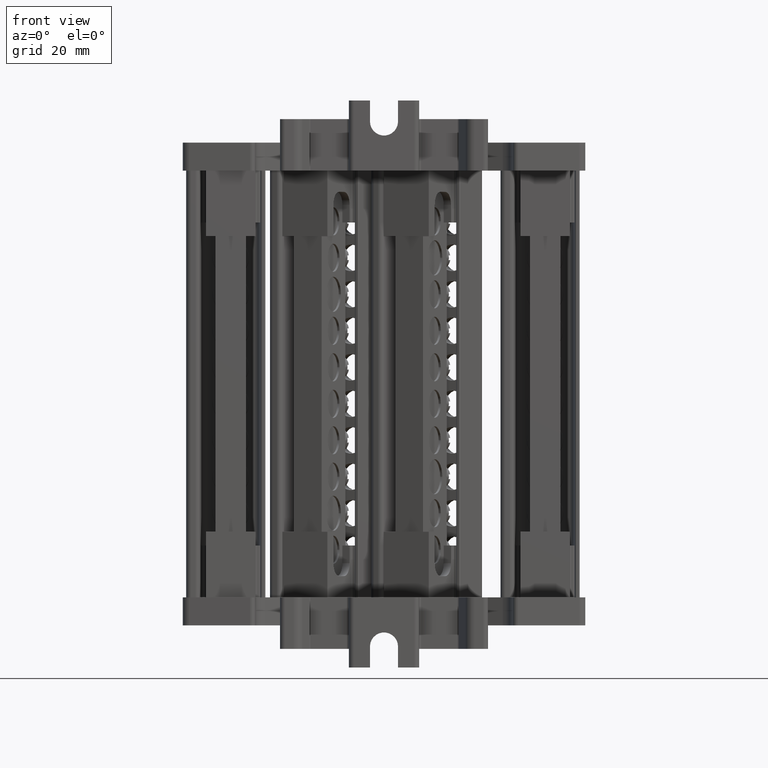
[diagram: clean part render]
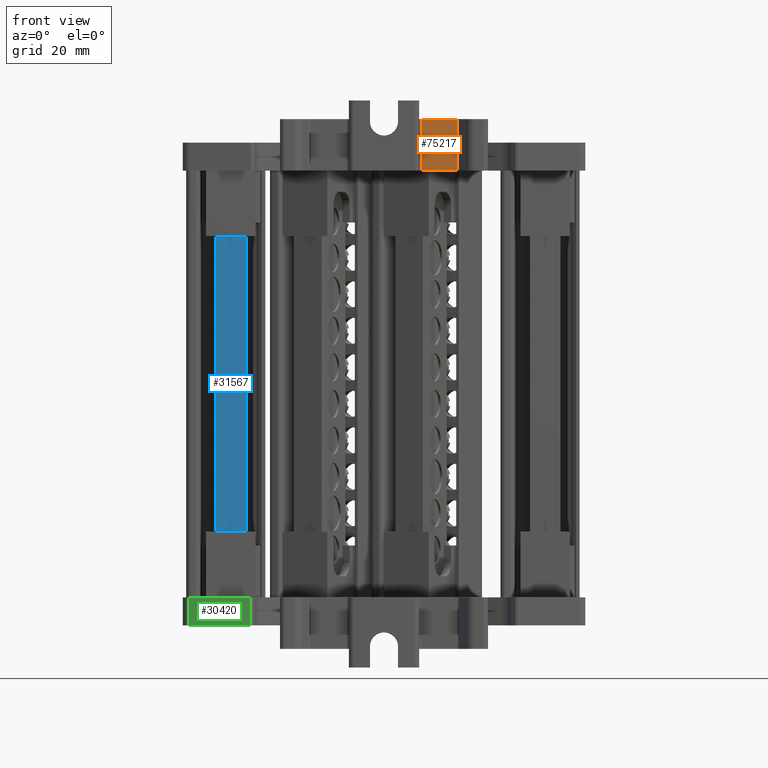
[diagram: same view with three faces highlighted in distinct colors, each labeled with its STEP entity id]
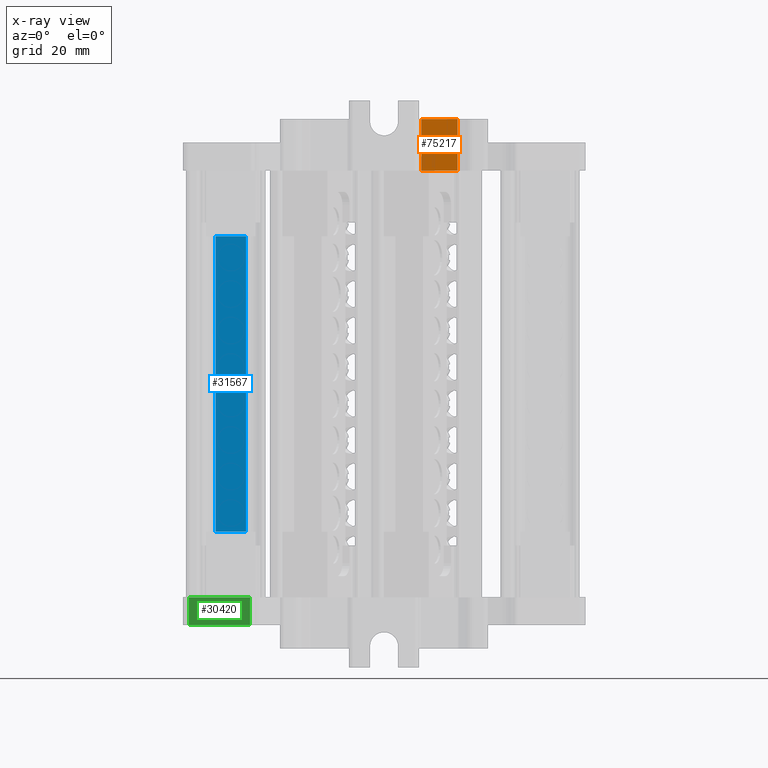
[diagram: x-ray of the same camera — body ghosted, the three highlighted faces saturated]
A machine part, front view with three faces highlighted in distinct colors.
The next image is the same camera in x-ray (body ghosted, the three faces saturated) — at least one of them is partly hidden behind the body in this view.
Their STEP definitions:

[orange] entity #75217 — the highlighted planar face has unit normal (-0, 1, 0).
#160 = ORIENTED_EDGE ( 'NONE', *, *, #6796, .F. ) ;
#163 = ORIENTED_EDGE ( 'NONE', *, *, #6807, .F. ) ;
#202 = ORIENTED_EDGE ( 'NONE', *, *, #15896, .F. ) ;
#297 = ORIENTED_EDGE ( 'NONE', *, *, #6812, .F. ) ;
#6796 = EDGE_CURVE ( 'NONE', #24451, #24515, #81922, .T. ) ;
#6807 = EDGE_CURVE ( 'NONE', #24375, #24474, #81988, .T. ) ;
#6812 = EDGE_CURVE ( 'NONE', #24515, #24375, #82012, .T. ) ;
#15896 = EDGE_CURVE ( 'NONE', #24474, #24451, #32202, .T. ) ;
#22197 = VECTOR ( 'NONE', #32301, 1000.000000000000000 ) ;
#24375 = VERTEX_POINT ( 'NONE', #110832 ) ;
#24451 = VERTEX_POINT ( 'NONE', #110870 ) ;
#24474 = VERTEX_POINT ( 'NONE', #110784 ) ;
#24515 = VERTEX_POINT ( 'NONE', #111004 ) ;
#32202 = LINE ( 'NONE', #32246, #22197 ) ;
#32246 = CARTESIAN_POINT ( 'NONE',  ( 393.5326994787840800, -111.7667543294538200, 96.29460800001189100 ) ) ;
#32301 = DIRECTION ( 'NONE',  ( -1.000000000000000000, 0.0000000000000000000, -0.0000000000000000000 ) ) ;
#48082 = VECTOR ( 'NONE', #81967, 1000.000000000000000 ) ;
#48100 = VECTOR ( 'NONE', #81997, 1000.000000000000000 ) ;
#48294 = VECTOR ( 'NONE', #82035, 1000.000000000000100 ) ;
#60343 = EDGE_LOOP ( 'NONE', ( #163, #297, #160, #202 ) ) ;
#63501 = AXIS2_PLACEMENT_3D ( 'NONE', #79361, #79381, #79363 ) ;
#75217 = ADVANCED_FACE ( 'NONE', ( #79377 ), #79358, .F. ) ;
#79358 = PLANE ( 'NONE',  #63501 ) ;
#79361 = CARTESIAN_POINT ( 'NONE',  ( 393.5326964436435400, -111.7667551424064100, 96.29460800001189100 ) ) ;
#79363 = DIRECTION ( 'NONE',  ( -0.9999999999999985600, -5.281446223115881900E-008, 0.0000000000000000000 ) ) ;
#79377 = FACE_OUTER_BOUND ( 'NONE', #60343, .T. ) ;
#79381 = DIRECTION ( 'NONE',  ( -5.281446223115882600E-008, 0.9999999999999986700, 0.0000000000000000000 ) ) ;
#81922 = LINE ( 'NONE', #81973, #48082 ) ;
#81967 = DIRECTION ( 'NONE',  ( 0.0000000000000000000, 0.0000000000000000000, 1.000000000000000000 ) ) ;
#81973 = CARTESIAN_POINT ( 'NONE',  ( 401.1849432537100000, -111.7667547382571200, 96.29460800001189100 ) ) ;
#81988 = LINE ( 'NONE', #82021, #48100 ) ;
#81997 = DIRECTION ( 'NONE',  ( -0.0000000000000000000, -0.0000000000000000000, -1.000000000000000000 ) ) ;
#82012 = LINE ( 'NONE', #82037, #48294 ) ;
#82021 = CARTESIAN_POINT ( 'NONE',  ( 408.9253098148637400, -111.7667543294538200, 96.29460800001189100 ) ) ;
#82035 = DIRECTION ( 'NONE',  ( 0.9999999999999985600, 5.281446223115881900E-008, -0.0000000000000000000 ) ) ;
#82037 = CARTESIAN_POINT ( 'NONE',  ( 393.5326964436435400, -111.7667551424064100, 107.2946080000120000 ) ) ;
#110784 = CARTESIAN_POINT ( 'NONE',  ( 408.9253098089028500, -111.7667543294538200, 96.29460800001189100 ) ) ;
#110832 = CARTESIAN_POINT ( 'NONE',  ( 408.9253098228115300, -111.7667544657215900, 107.2946080000120000 ) ) ;
#110870 = CARTESIAN_POINT ( 'NONE',  ( 401.1849432537100000, -111.7667545338554900, 96.29460800001189100 ) ) ;
#111004 = CARTESIAN_POINT ( 'NONE',  ( 401.1849432405064100, -111.7667547382571200, 107.2946080000120000 ) ) ;

[blue] entity #31567 — the highlighted planar face has unit normal (0, 1, -0).
#15989 = EDGE_CURVE ( 'NONE', #83463, #83437, #32576, .T. ) ;
#17091 = EDGE_CURVE ( 'NONE', #83437, #83387, #91171, .T. ) ;
#17154 = EDGE_CURVE ( 'NONE', #83443, #83387, #91398, .T. ) ;
#17160 = EDGE_CURVE ( 'NONE', #83463, #83443, #91403, .T. ) ;
#22221 = VECTOR ( 'NONE', #32656, 1000.000000000000000 ) ;
#31567 = ADVANCED_FACE ( 'NONE', ( #41382 ), #41371, .F. ) ;
#32576 = LINE ( 'NONE', #32709, #22221 ) ;
#32656 = DIRECTION ( 'NONE',  ( 1.000000000000000000, -1.456672460483251900E-013, -0.0000000000000000000 ) ) ;
#32709 = CARTESIAN_POINT ( 'NONE',  ( 357.1905546087425000, -111.4507539012276600, 82.27722964847249900 ) ) ;
#37509 = AXIS2_PLACEMENT_3D ( 'NONE', #41379, #41344, #41363 ) ;
#41344 = DIRECTION ( 'NONE',  ( 1.456672460483251900E-013, 1.000000000000000000, -7.965850201685501300E-015 ) ) ;
#41363 = DIRECTION ( 'NONE',  ( -1.000000000000000000, 1.456672460483251900E-013, 0.0000000000000000000 ) ) ;
#41371 = PLANE ( 'NONE',  #37509 ) ;
#41379 = CARTESIAN_POINT ( 'NONE',  ( 357.1905546087425000, -111.4507539012282400, 8.622608000012800000 ) ) ;
#41382 = FACE_OUTER_BOUND ( 'NONE', #97526, .T. ) ;
#44970 = ORIENTED_EDGE ( 'NONE', *, *, #17091, .F. ) ;
#44973 = ORIENTED_EDGE ( 'NONE', *, *, #15989, .F. ) ;
#44994 = ORIENTED_EDGE ( 'NONE', *, *, #17154, .T. ) ;
#45024 = ORIENTED_EDGE ( 'NONE', *, *, #17160, .T. ) ;
#83387 = VERTEX_POINT ( 'NONE', #106972 ) ;
#83437 = VERTEX_POINT ( 'NONE', #107051 ) ;
#83443 = VERTEX_POINT ( 'NONE', #107044 ) ;
#83463 = VERTEX_POINT ( 'NONE', #107147 ) ;
#89081 = VECTOR ( 'NONE', #91142, 1000.000000000000000 ) ;
#89215 = VECTOR ( 'NONE', #91381, 1000.000000000000000 ) ;
#89377 = VECTOR ( 'NONE', #91402, 1000.000000000000000 ) ;
#91142 = DIRECTION ( 'NONE',  ( -1.160363461313022800E-027, -7.965850201685501300E-015, -1.000000000000000000 ) ) ;
#91148 = CARTESIAN_POINT ( 'NONE',  ( 363.6905546087424500, -111.4507539012291900, 8.622608000012800000 ) ) ;
#91171 = LINE ( 'NONE', #91148, #89081 ) ;
#91370 = CARTESIAN_POINT ( 'NONE',  ( 342.4458479252650100, -111.4507539012281100, 19.11198635155149400 ) ) ;
#91381 = DIRECTION ( 'NONE',  ( 1.000000000000000000, -0.0000000000000000000, 0.0000000000000000000 ) ) ;
#91398 = LINE ( 'NONE', #91370, #89215 ) ;
#91402 = DIRECTION ( 'NONE',  ( -3.469446950781745900E-018, 5.053847826311361400E-031, -1.000000000000000000 ) ) ;
#91403 = LINE ( 'NONE', #91404, #89377 ) ;
#91404 = CARTESIAN_POINT ( 'NONE',  ( 357.1905546087425000, -111.4507539012278600, 8.622608000012688100 ) ) ;
#97526 = EDGE_LOOP ( 'NONE', ( #44970, #44973, #45024, #44994 ) ) ;
#106972 = CARTESIAN_POINT ( 'NONE',  ( 363.6905546087425600, -111.4507539012289100, 19.11198635155149400 ) ) ;
#107044 = CARTESIAN_POINT ( 'NONE',  ( 357.1905546087425000, -111.4507539012281500, 19.11198635155149400 ) ) ;
#107051 = CARTESIAN_POINT ( 'NONE',  ( 363.6905546087424500, -111.4507539012286700, 82.27722964847249900 ) ) ;
#107147 = CARTESIAN_POINT ( 'NONE',  ( 357.1905546087425000, -111.4507539012280000, 82.27722964847249900 ) ) ;

[green] entity #30420 — the highlighted planar face has unit normal (-0.1343, -0.9909, 0).
#13965 = VECTOR ( 'NONE', #21004, 1000.000000000000000 ) ;
#14049 = VECTOR ( 'NONE', #20018, 1000.000000000000100 ) ;
#14441 = EDGE_CURVE ( 'NONE', #84125, #84138, #20956, .T. ) ;
#14499 = EDGE_CURVE ( 'NONE', #84138, #84054, #21059, .T. ) ;
#14969 = EDGE_CURVE ( 'NONE', #84125, #102108, #21358, .T. ) ;
#15017 = EDGE_CURVE ( 'NONE', #102108, #84054, #21397, .T. ) ;
#20018 = DIRECTION ( 'NONE',  ( -0.9909438270997945600, 0.1342770700187205200, -0.0000000000000000000 ) ) ;
#20956 = LINE ( 'NONE', #20987, #13965 ) ;
#20987 = CARTESIAN_POINT ( 'NONE',  ( 364.5582728934169300, -116.9087888398084100, 5.094608000012101500 ) ) ;
#21004 = DIRECTION ( 'NONE',  ( 0.0000000000000000000, 0.0000000000000000000, 1.000000000000000000 ) ) ;
#21059 = LINE ( 'NONE', #21071, #14049 ) ;
#21071 = CARTESIAN_POINT ( 'NONE',  ( 399.9728262503890100, -121.7076102570762400, 5.094608000012101500 ) ) ;
#21355 = CARTESIAN_POINT ( 'NONE',  ( 364.5582728934169300, -116.9087888398082700, -0.9053919999880005700 ) ) ;
#21358 = LINE ( 'NONE', #21355, #22784 ) ;
#21359 = DIRECTION ( 'NONE',  ( -0.9909438270997944500, 0.1342770700187221900, 0.0000000000000000000 ) ) ;
#21389 = CARTESIAN_POINT ( 'NONE',  ( 351.4873309502855800, -115.1376210515743000, 5.094608000012101500 ) ) ;
#21397 = LINE ( 'NONE', #21389, #22747 ) ;
#21411 = DIRECTION ( 'NONE',  ( -0.0000000000000000000, -0.0000000000000000000, 1.000000000000000000 ) ) ;
#22747 = VECTOR ( 'NONE', #21411, 1000.000000000000000 ) ;
#22784 = VECTOR ( 'NONE', #21359, 999.9999999999998900 ) ;
#30420 = ADVANCED_FACE ( 'NONE', ( #41312 ), #41285, .T. ) ;
#39803 = AXIS2_PLACEMENT_3D ( 'NONE', #41297, #41311, #41313 ) ;
#41285 = PLANE ( 'NONE',  #39803 ) ;
#41297 = CARTESIAN_POINT ( 'NONE',  ( 399.9728262503890100, -121.7076102570762400, 5.094608000012101500 ) ) ;
#41311 = DIRECTION ( 'NONE',  ( -0.1342770700187205200, -0.9909438270997945600, 0.0000000000000000000 ) ) ;
#41312 = FACE_OUTER_BOUND ( 'NONE', #90232, .T. ) ;
#41313 = DIRECTION ( 'NONE',  ( 0.9909438270997945600, -0.1342770700187205200, 0.0000000000000000000 ) ) ;
#84054 = VERTEX_POINT ( 'NONE', #105869 ) ;
#84125 = VERTEX_POINT ( 'NONE', #106020 ) ;
#84138 = VERTEX_POINT ( 'NONE', #106001 ) ;
#86155 = ORIENTED_EDGE ( 'NONE', *, *, #14441, .T. ) ;
#86172 = ORIENTED_EDGE ( 'NONE', *, *, #14969, .F. ) ;
#87482 = ORIENTED_EDGE ( 'NONE', *, *, #14499, .T. ) ;
#87514 = ORIENTED_EDGE ( 'NONE', *, *, #15017, .F. ) ;
#90232 = EDGE_LOOP ( 'NONE', ( #86172, #86155, #87482, #87514 ) ) ;
#102108 = VERTEX_POINT ( 'NONE', #113789 ) ;
#105869 = CARTESIAN_POINT ( 'NONE',  ( 351.4873309502855200, -115.1376210515743300, 5.094608000012101500 ) ) ;
#106001 = CARTESIAN_POINT ( 'NONE',  ( 364.5582728934168100, -116.9087888398083800, 5.094608000012101500 ) ) ;
#106020 = CARTESIAN_POINT ( 'NONE',  ( 364.5582728934168100, -116.9087888398083200, -0.9053919999880005700 ) ) ;
#113789 = CARTESIAN_POINT ( 'NONE',  ( 351.4873309502855200, -115.1376210515742700, -0.9053919999880005700 ) ) ;